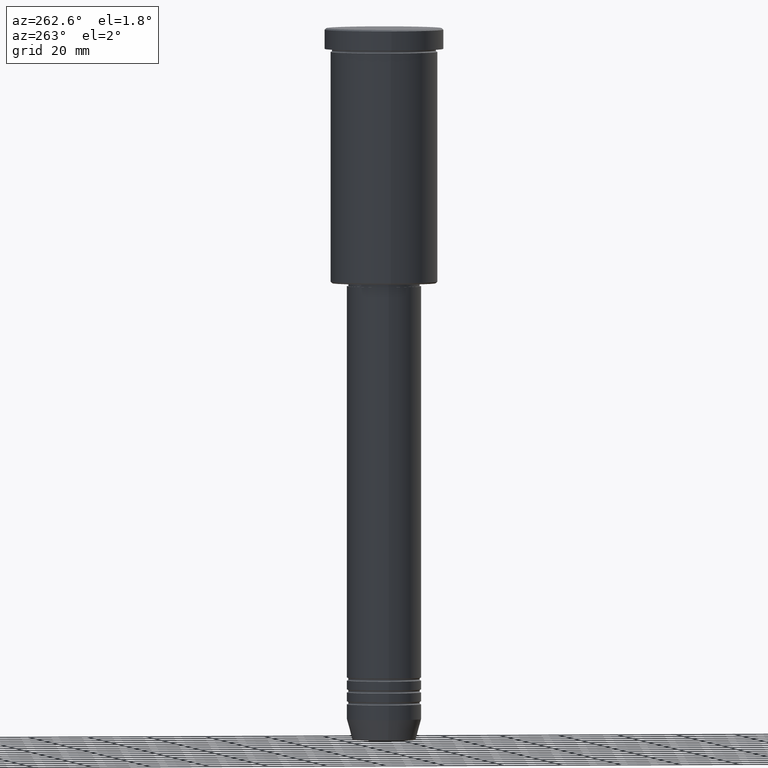
[diagram: clean part render]
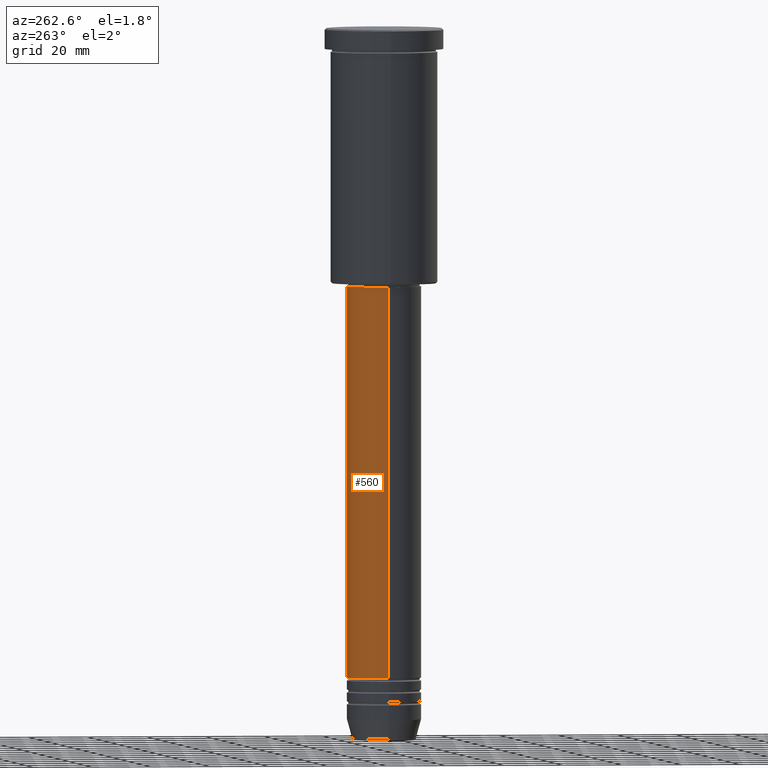
[diagram: same view with one face highlighted and labeled with its STEP entity id]
A machine part, auxiliary view. The second image highlights one B-rep face of the part: STEP entity #560.
In plain terms, the highlighted cylindrical surface (partial cylindrical patch) has radius 12.5 mm, axis along (-0, -0, 1).
Its self-contained STEP definition (entity closure, byte-faithful):
#3 = VECTOR ( 'NONE', #136, 1000.000000000000000 ) ;
#12 = CARTESIAN_POINT ( 'NONE',  ( 0.000000000000000000, 0.000000000000000000, -87.00000000000002842 ) ) ;
#42 = CIRCLE ( 'NONE', #881, 12.50000000000000000 ) ;
#78 = VERTEX_POINT ( 'NONE', #1036 ) ;
#88 = DIRECTION ( 'NONE',  ( -0.000000000000000000, -0.000000000000000000, 1.000000000000000000 ) ) ;
#136 = DIRECTION ( 'NONE',  ( -0.000000000000000000, -0.000000000000000000, 1.000000000000000000 ) ) ;
#137 = AXIS2_PLACEMENT_3D ( 'NONE', #470, #373, #925 ) ;
#171 = VERTEX_POINT ( 'NONE', #1166 ) ;
#178 = VERTEX_POINT ( 'NONE', #716 ) ;
#228 = CARTESIAN_POINT ( 'NONE',  ( 12.50000000000000000, 0.000000000000000000, 0.000000000000000000 ) ) ;
#298 = ORIENTED_EDGE ( 'NONE', *, *, #679, .T. ) ;
#373 = DIRECTION ( 'NONE',  ( -0.000000000000000000, -0.000000000000000000, 1.000000000000000000 ) ) ;
#386 = DIRECTION ( 'NONE',  ( -0.000000000000000000, -0.000000000000000000, 1.000000000000000000 ) ) ;
#420 = ORIENTED_EDGE ( 'NONE', *, *, #1176, .F. ) ;
#425 = DIRECTION ( 'NONE',  ( 1.000000000000000000, 0.000000000000000000, 0.000000000000000000 ) ) ;
#470 = CARTESIAN_POINT ( 'NONE',  ( 0.000000000000000000, 0.000000000000000000, 0.000000000000000000 ) ) ;
#523 = VECTOR ( 'NONE', #922, 1000.000000000000000 ) ;
#528 = EDGE_LOOP ( 'NONE', ( #298, #591, #420, #980 ) ) ;
#547 = VERTEX_POINT ( 'NONE', #1069 ) ;
#560 = ADVANCED_FACE ( 'NONE', ( #1087 ), #823, .T. ) ;
#591 = ORIENTED_EDGE ( 'NONE', *, *, #1016, .T. ) ;
#679 = EDGE_CURVE ( 'NONE', #547, #171, #782, .T. ) ;
#716 = CARTESIAN_POINT ( 'NONE',  ( -12.50000000000000000, 1.530808498934191521E-15, -87.00000000000002842 ) ) ;
#733 = AXIS2_PLACEMENT_3D ( 'NONE', #786, #88, #425 ) ;
#767 = LINE ( 'NONE', #228, #3 ) ;
#782 = CIRCLE ( 'NONE', #733, 12.50000000000000000 ) ;
#786 = CARTESIAN_POINT ( 'NONE',  ( 0.000000000000000000, 0.000000000000000000, -219.0000000000000000 ) ) ;
#795 = EDGE_CURVE ( 'NONE', #547, #78, #767, .T. ) ;
#823 = CYLINDRICAL_SURFACE ( 'NONE', #137, 12.50000000000000000 ) ;
#881 = AXIS2_PLACEMENT_3D ( 'NONE', #12, #386, #1023 ) ;
#922 = DIRECTION ( 'NONE',  ( -0.000000000000000000, -0.000000000000000000, 1.000000000000000000 ) ) ;
#925 = DIRECTION ( 'NONE',  ( 1.000000000000000000, 0.000000000000000000, 0.000000000000000000 ) ) ;
#980 = ORIENTED_EDGE ( 'NONE', *, *, #795, .F. ) ;
#1006 = LINE ( 'NONE', #1018, #523 ) ;
#1016 = EDGE_CURVE ( 'NONE', #171, #178, #1006, .T. ) ;
#1018 = CARTESIAN_POINT ( 'NONE',  ( -12.50000000000000000, 1.530808498934191521E-15, 0.000000000000000000 ) ) ;
#1023 = DIRECTION ( 'NONE',  ( 1.000000000000000000, 0.000000000000000000, 0.000000000000000000 ) ) ;
#1036 = CARTESIAN_POINT ( 'NONE',  ( 12.50000000000000000, 0.000000000000000000, -87.00000000000002842 ) ) ;
#1069 = CARTESIAN_POINT ( 'NONE',  ( 12.50000000000000000, 0.000000000000000000, -219.0000000000000000 ) ) ;
#1087 = FACE_OUTER_BOUND ( 'NONE', #528, .T. ) ;
#1166 = CARTESIAN_POINT ( 'NONE',  ( -12.50000000000000000, 1.530808498934191521E-15, -219.0000000000000000 ) ) ;
#1176 = EDGE_CURVE ( 'NONE', #78, #178, #42, .T. ) ;